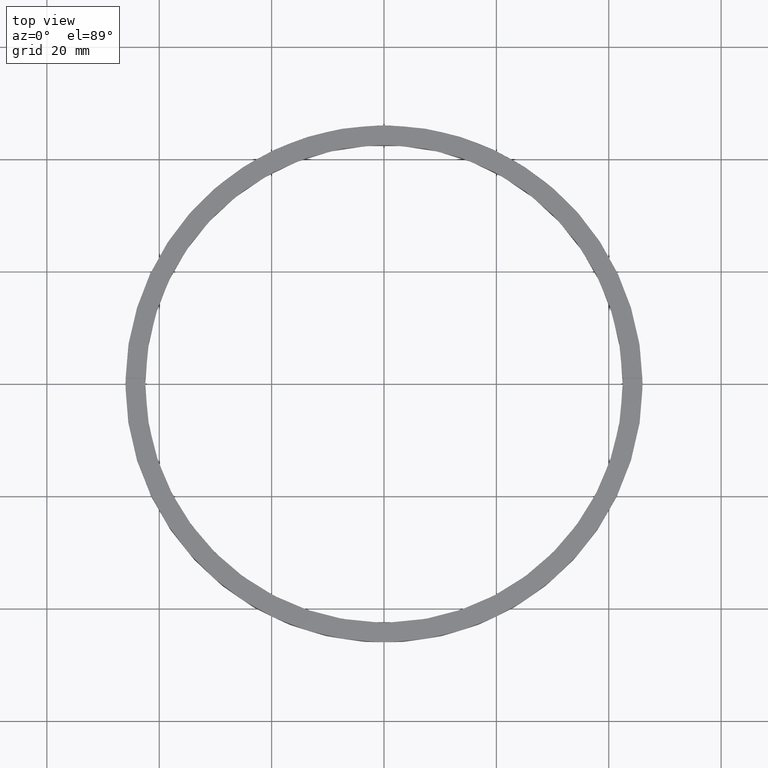
[diagram: clean part render]
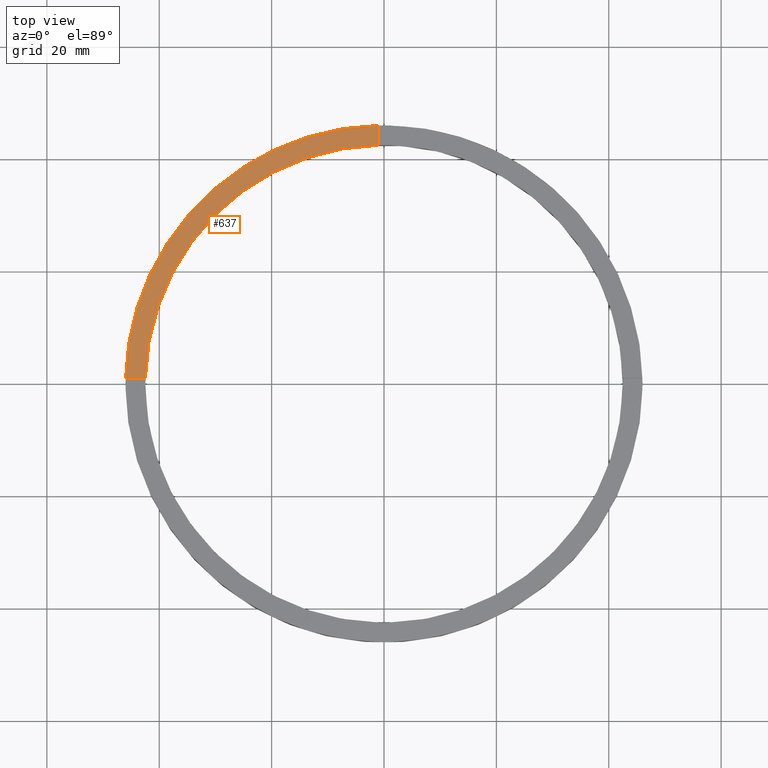
[diagram: same view with one face highlighted and labeled with its STEP entity id]
A machine part, top view. The second image highlights one B-rep face of the part: STEP entity #637.
In plain terms, the highlighted planar face has unit normal (0, 0, 1).
Its self-contained STEP definition (entity closure, byte-faithful):
#4 = EDGE_LOOP ( 'NONE', ( #143, #475, #399, #482 ) ) ;
#8 = DIRECTION ( 'NONE',  ( 1.000000000000000000, 0.000000000000000000, 0.000000000000000000 ) ) ;
#19 = EDGE_CURVE ( 'NONE', #487, #727, #180, .T. ) ;
#53 = AXIS2_PLACEMENT_3D ( 'NONE', #312, #419, #394 ) ;
#79 = LINE ( 'NONE', #533, #604 ) ;
#113 = CARTESIAN_POINT ( 'NONE',  ( -42.48823366533375889, 0.9999999999999705791, 4.500000000000000000 ) ) ;
#125 = DIRECTION ( 'NONE',  ( 0.000000000000000000, 0.000000000000000000, 1.000000000000000000 ) ) ;
#143 = ORIENTED_EDGE ( 'NONE', *, *, #390, .F. ) ;
#145 = AXIS2_PLACEMENT_3D ( 'NONE', #703, #282, #386 ) ;
#180 = CIRCLE ( 'NONE', #506, 42.50000000000000711 ) ;
#185 = CARTESIAN_POINT ( 'NONE',  ( 0.000000000000000000, 0.000000000000000000, 4.500000000000000000 ) ) ;
#224 = VERTEX_POINT ( 'NONE', #372 ) ;
#235 = DIRECTION ( 'NONE',  ( -1.000000000000000000, -1.951563910473907735E-16, 0.000000000000000000 ) ) ;
#266 = FACE_OUTER_BOUND ( 'NONE', #4, .T. ) ;
#282 = DIRECTION ( 'NONE',  ( 0.000000000000000000, 0.000000000000000000, 1.000000000000000000 ) ) ;
#312 = CARTESIAN_POINT ( 'NONE',  ( 0.000000000000000000, 0.000000000000000000, 4.500000000000000000 ) ) ;
#345 = CARTESIAN_POINT ( 'NONE',  ( -36.00000000000018474, 0.9999999999999718003, 4.500000000000000000 ) ) ;
#351 = CARTESIAN_POINT ( 'NONE',  ( -45.98912915026767223, 0.9999999999999699130, 4.500000000000000000 ) ) ;
#367 = PLANE ( 'NONE',  #145 ) ;
#372 = CARTESIAN_POINT ( 'NONE',  ( -1.000000000000026201, 45.98912915026767223, 4.500000000000000000 ) ) ;
#386 = DIRECTION ( 'NONE',  ( 1.000000000000000000, 0.000000000000000000, -0.000000000000000000 ) ) ;
#390 = EDGE_CURVE ( 'NONE', #224, #487, #79, .T. ) ;
#394 = DIRECTION ( 'NONE',  ( 1.000000000000000000, 0.000000000000000000, 0.000000000000000000 ) ) ;
#399 = ORIENTED_EDGE ( 'NONE', *, *, #631, .F. ) ;
#419 = DIRECTION ( 'NONE',  ( 0.000000000000000000, 0.000000000000000000, 1.000000000000000000 ) ) ;
#475 = ORIENTED_EDGE ( 'NONE', *, *, #676, .T. ) ;
#482 = ORIENTED_EDGE ( 'NONE', *, *, #19, .F. ) ;
#487 = VERTEX_POINT ( 'NONE', #603 ) ;
#505 = CIRCLE ( 'NONE', #53, 46.00000000000000000 ) ;
#506 = AXIS2_PLACEMENT_3D ( 'NONE', #185, #125, #8 ) ;
#533 = CARTESIAN_POINT ( 'NONE',  ( -1.000000000000026201, 36.00000000000000000, 4.500000000000000000 ) ) ;
#537 = LINE ( 'NONE', #345, #766 ) ;
#582 = DIRECTION ( 'NONE',  ( -0.000000000000000000, -1.000000000000000000, -0.000000000000000000 ) ) ;
#603 = CARTESIAN_POINT ( 'NONE',  ( -1.000000000000026201, 42.48823366533375179, 4.500000000000000000 ) ) ;
#604 = VECTOR ( 'NONE', #582, 1000.000000000000000 ) ;
#631 = EDGE_CURVE ( 'NONE', #727, #704, #537, .T. ) ;
#637 = ADVANCED_FACE ( 'NONE', ( #266 ), #367, .T. ) ;
#676 = EDGE_CURVE ( 'NONE', #224, #704, #505, .T. ) ;
#703 = CARTESIAN_POINT ( 'NONE',  ( 0.000000000000000000, 0.000000000000000000, 4.500000000000000000 ) ) ;
#704 = VERTEX_POINT ( 'NONE', #351 ) ;
#727 = VERTEX_POINT ( 'NONE', #113 ) ;
#766 = VECTOR ( 'NONE', #235, 1000.000000000000000 ) ;